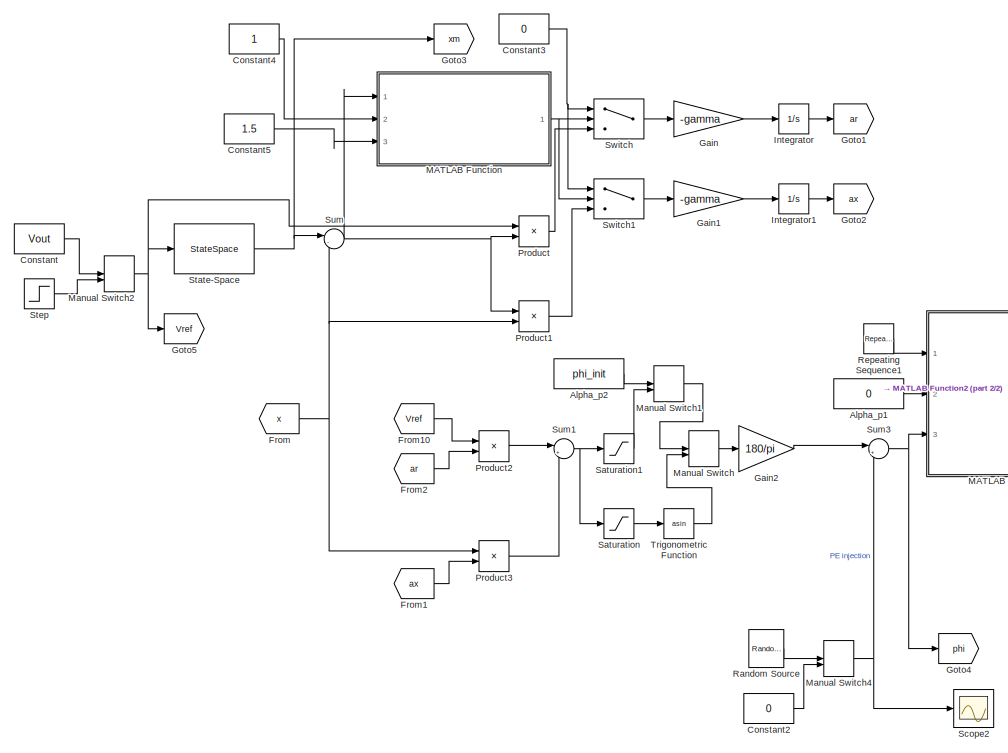
[diagram: root canvas - part 1/2, left side, full height]
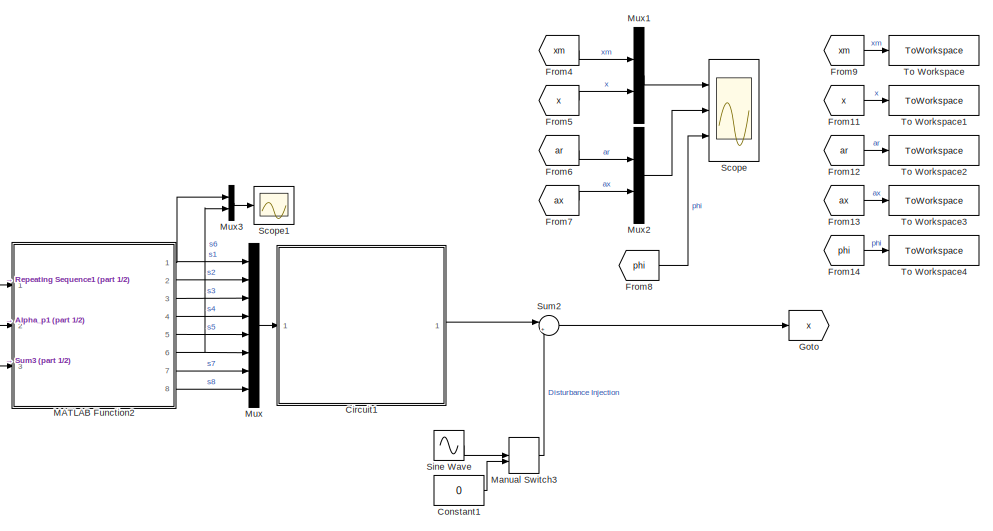
[diagram: root canvas - part 2/2, middle right region]
MODEL slx_f93a5497a171
KIND model
CONFIG AbsTol = auto
CONFIG EnableMultiTasking = off
CONFIG FixedStep = auto
CONFIG MaxStep = min_step_size
CONFIG MinStep = auto
CONFIG RelTol = 1e-3
CONFIG SampleTimeConstraint = Unconstrained
CONFIG SolverName = VariableStepAuto
CONFIG StartTime = 0.0
CONFIG StopTime = TSIM
BLOCK [Constant] Alpha_p1
  Value = 0
BLOCK [Constant] Alpha_p2
  Value = phi_init
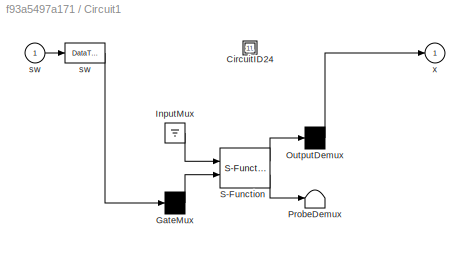
BLOCK [SubSystem] Circuit1
  CopyFcn = plecs('sl', 203);
  DeleteFcn = plecs('sl', 205);
  DestroyFcn = plecs('sl', 207);
  ErrorFcn = plerrorfcn
  InitFcn = plecs('sl', 214);
  LoadFcn = plecs('sl', 200);
  NameChangeFcn = plecs('sl', 210);
  OpenFcn = plecs('sl', 202);
  Ports = [1, 1]
  PostSaveFcn = plecs('sl', 201);
  PreCopyFcn = plecs('sl', 216);
  PreSaveFcn = plecs('sl', 211);
  RequestExecContextInheritance = off
  StartFcn = plecs('sl', 208);
  StopFcn = plecs('sl', 209);
  UndoDeleteFcn = plecs('sl', 206);
BLOCK [SubSystem] Circuit1/ CircuitID24 
  Ports = []
  RequestExecContextInheritance = off
BLOCK [Mux] Circuit1/ GateMux 
  Inputs = [ 8 ]
  Ports = [1, 1]
BLOCK [Ground] Circuit1/ InputMux 
BLOCK [Demux] Circuit1/ OutputDemux 
  Outputs = [ 1 ]
  Ports = [1, 1]
BLOCK [Terminator] Circuit1/ ProbeDemux 
BLOCK [S-Function] Circuit1/ S-Function 
  EnableBusSupport = off
  FunctionName = plecs
  Ports = [2, 2]
  SFcnIsStateOwnerBlock = off
  SFunctionDeploymentMode = off
BLOCK [DataTypeConversion] Circuit1/ sw 
BLOCK [Inport] Circuit1/sw
  PortDimensions = 8
BLOCK [Outport] Circuit1/x
  PortDimensions = 1
BLOCK [Constant] Constant
  Value = Vout
BLOCK [Constant] Constant1
  Value = 0
BLOCK [Constant] Constant2
  Value = 0
BLOCK [Constant] Constant3
  Value = 0
BLOCK [Constant] Constant4
BLOCK [Constant] Constant5
  Value = 1.5
BLOCK [From] From
  GotoTag = x
BLOCK [From] From1
  GotoTag = ax
BLOCK [From] From10
  GotoTag = Vref
BLOCK [From] From11
  GotoTag = x
BLOCK [From] From12
  GotoTag = ar
BLOCK [From] From13
  GotoTag = ax
BLOCK [From] From14
  GotoTag = phi
BLOCK [From] From2
  GotoTag = ar
BLOCK [From] From4
  GotoTag = xm
BLOCK [From] From5
  GotoTag = x
BLOCK [From] From6
  GotoTag = ar
BLOCK [From] From7
  GotoTag = ax
BLOCK [From] From8
  GotoTag = phi
BLOCK [From] From9
  GotoTag = xm
BLOCK [Gain] Gain
  Gain = -gamma
BLOCK [Gain] Gain1
  Gain = -gamma
BLOCK [Gain] Gain2
  Gain = 180/pi
BLOCK [Goto] Goto
  GotoTag = x
BLOCK [Goto] Goto1
  GotoTag = ar
BLOCK [Goto] Goto2
  GotoTag = ax
BLOCK [Goto] Goto3
  GotoTag = xm
BLOCK [Goto] Goto4
  GotoTag = phi
BLOCK [Goto] Goto5
  GotoTag = Vref
BLOCK [Integrator] Integrator
  InitialCondition = ar_0
  Ports = [1, 1]
BLOCK [Integrator] Integrator1
  InitialCondition = ax_0
  Ports = [1, 1]
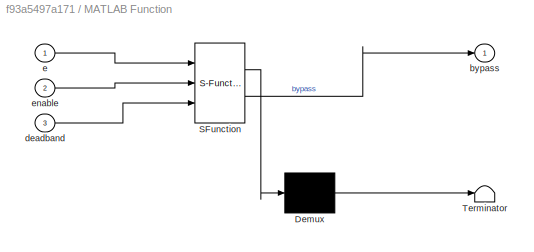
BLOCK [SubSystem] MATLAB Function
  ErrorFcn = Stateflow.Translate.translate
  PermitHierarchicalResolution = ExplicitOnly
  Ports = [3, 1]
  RequestExecContextInheritance = off
  SFBlockType = MATLAB Function
  TreatAsAtomicUnit = on
BLOCK [Demux] MATLAB Function/ Demux 
  Outputs = 1
  Ports = [1, 1]
BLOCK [S-Function] MATLAB Function/ SFunction 
  EnableBusSupport = on
  FunctionName = sf_sfun
  PortCounts = [3 2]
  Ports = [3, 2]
  SFcnIsStateOwnerBlock = off
  SFunctionDeploymentMode = off
  Tag = Stateflow S-Function 1
BLOCK [Terminator] MATLAB Function/ Terminator 
BLOCK [Outport] MATLAB Function/bypass
BLOCK [Inport] MATLAB Function/deadband
  Port = 3
BLOCK [Inport] MATLAB Function/e
BLOCK [Inport] MATLAB Function/enable
  Port = 2
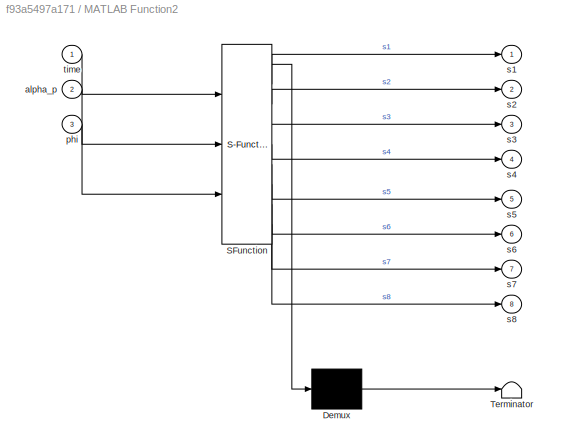
BLOCK [SubSystem] MATLAB Function2
  ErrorFcn = Stateflow.Translate.translate
  PermitHierarchicalResolution = ExplicitOnly
  Ports = [3, 8]
  RequestExecContextInheritance = off
  SFBlockType = MATLAB Function
  TreatAsAtomicUnit = on
BLOCK [Demux] MATLAB Function2/ Demux 
  Outputs = 1
  Ports = [1, 1]
BLOCK [S-Function] MATLAB Function2/ SFunction 
  EnableBusSupport = on
  FunctionName = sf_sfun
  PortCounts = [3 9]
  Ports = [3, 9]
  SFcnIsStateOwnerBlock = off
  SFunctionDeploymentMode = off
  Tag = Stateflow S-Function 2
BLOCK [Terminator] MATLAB Function2/ Terminator 
BLOCK [Inport] MATLAB Function2/alpha_p
  Port = 2
BLOCK [Inport] MATLAB Function2/phi
  Port = 3
BLOCK [Outport] MATLAB Function2/s1
  VectorParamsAs1DForOutWhenUnconnected = off
BLOCK [Outport] MATLAB Function2/s2
  Port = 2
  VectorParamsAs1DForOutWhenUnconnected = off
BLOCK [Outport] MATLAB Function2/s3
  Port = 3
  VectorParamsAs1DForOutWhenUnconnected = off
BLOCK [Outport] MATLAB Function2/s4
  Port = 4
  VectorParamsAs1DForOutWhenUnconnected = off
BLOCK [Outport] MATLAB Function2/s5
  Port = 5
  VectorParamsAs1DForOutWhenUnconnected = off
BLOCK [Outport] MATLAB Function2/s6
  Port = 6
  VectorParamsAs1DForOutWhenUnconnected = off
BLOCK [Outport] MATLAB Function2/s7
  Port = 7
  VectorParamsAs1DForOutWhenUnconnected = off
BLOCK [Outport] MATLAB Function2/s8
  Port = 8
  VectorParamsAs1DForOutWhenUnconnected = off
BLOCK [Inport] MATLAB Function2/time
BLOCK [ManualSwitch] Manual Switch
  CurrentSetting = 0
BLOCK [ManualSwitch] Manual Switch1
  CurrentSetting = 0
BLOCK [ManualSwitch] Manual Switch2
  CurrentSetting = 0
BLOCK [ManualSwitch] Manual Switch3
  CurrentSetting = 0
BLOCK [ManualSwitch] Manual Switch4
  CurrentSetting = 0
BLOCK [Mux] Mux
  DisplayOption = bar
  Inputs = 8
  Ports = [8, 1]
BLOCK [Mux] Mux1
  DisplayOption = bar
  Inputs = 2
  Ports = [2, 1]
BLOCK [Mux] Mux2
  DisplayOption = bar
  Inputs = 2
  Ports = [2, 1]
BLOCK [Mux] Mux3
  DisplayOption = bar
  Inputs = 2
  Ports = [2, 1]
BLOCK [Product] Product
  Ports = [2, 1]
BLOCK [Product] Product1
  Ports = [2, 1]
BLOCK [Product] Product2
  Ports = [2, 1]
BLOCK [Product] Product3
  Ports = [2, 1]
BLOCK [Reference] Random Source  REF=dspsrcs4/Random
Source
  Ports = [0, 1]
  SourceBlock = dspsrcs4/Random\nSource
  SourceProductBaseCode = DS
  SourceType = Random Source
  UserDataPersistent = on
BLOCK [Reference] Repeating Sequence1  REF=simulink/Sources/Repeating
Sequence
  Ports = [0, 1]
  SourceBlock = simulink/Sources/Repeating\nSequence
  SourceProductBaseCode = SL
  SourceType = Repeating table
BLOCK [Saturate] Saturation
  LowerLimit = -1
  UpperLimit = 1
BLOCK [Saturate] Saturation1
  LowerLimit = -pi/2
  UpperLimit = pi/2
BLOCK [Scope] Scope
  Floating = off
  NumInputPorts = 3
  Ports = [3]
  ScopeSpecificationString = Simulink.scopes.TimeScopeBlockCfg('CurrentConfiguration', extmgr.ConfigurationSet(extmgr.Configuration('Core','General UI',true),extmgr.Configuration('Core','Source UI',true),extmgr.Configuration('Sources','WiredSimulink',true),extmgr.Configuration('Visuals','Time Domain',true,'SerializedDisplays',{struct('MinYLimReal','-3.69273','MaxYLimReal','33.22459','YLabelReal','','MinYLimMag','0.00000','Max...<+2704ch>
BLOCK [Scope] Scope1
  Floating = off
  NumInputPorts = 1
  Ports = [1]
  ScopeSpecificationString = Simulink.scopes.TimeScopeBlockCfg('CurrentConfiguration', extmgr.ConfigurationSet(extmgr.Configuration('Core','General UI',true),extmgr.Configuration('Core','Source UI',true),extmgr.Configuration('Sources','WiredSimulink',true,'DataLoggingVariableName','ScopeData1'),extmgr.Configuration('Visuals','Time Domain',true,'SerializedDisplays',{struct('MinYLimReal','-0.125','MaxYLimReal','1.125','YLabelRe...<+1507ch>
BLOCK [Scope] Scope2
  Floating = off
  NumInputPorts = 1
  Ports = [1]
  ScopeSpecificationString = Simulink.scopes.TimeScopeBlockCfg('CurrentConfiguration', extmgr.ConfigurationSet(extmgr.Configuration('Core','General UI',true),extmgr.Configuration('Core','Source UI',true),extmgr.Configuration('Sources','WiredSimulink',true,'DataLoggingVariableName','ScopeData2'),extmgr.Configuration('Visuals','Time Domain',true,'SerializedDisplays',{struct('MinYLimReal','-1.00000','MaxYLimReal','1.00000','YLab...<+1522ch>
BLOCK [Sin] Sine Wave
  Amplitude = 2.5
  Frequency = 100e+3
  Ports = [0, 1]
  SampleTime = 0
BLOCK [StateSpace] State-Space
  A = -am
  B = bm
  D = 0
  InitialCondition = 0
  Ports = [1, 1]
BLOCK [Step] Step
  After = Vout2
  Before = Vout1
  SampleTime = 0
  Time = voltage_step_time
BLOCK [Sum] Sum
  Inputs = |-+
  Ports = [2, 1]
BLOCK [Sum] Sum1
  Inputs = |++
  Ports = [2, 1]
BLOCK [Sum] Sum2
  Inputs = |++
  Ports = [2, 1]
BLOCK [Sum] Sum3
  Inputs = |++
  Ports = [2, 1]
BLOCK [Switch] Switch
  Criteria = u2 > Threshold
  InputSameDT = off
  SaturateOnIntegerOverflow = off
  Threshold = 0.5
BLOCK [Switch] Switch1
  Criteria = u2 > Threshold
  InputSameDT = off
  SaturateOnIntegerOverflow = off
  Threshold = 0.5
BLOCK [ToWorkspace] To Workspace
  FixptAsFi = on
  MaxDataPoints = inf
  Ports = [1]
  SampleTime = -1
  SaveFormat = Structure With Time
  VariableName = xm
BLOCK [ToWorkspace] To Workspace1
  FixptAsFi = on
  MaxDataPoints = inf
  Ports = [1]
  SampleTime = -1
  SaveFormat = Structure With Time
  VariableName = x
BLOCK [ToWorkspace] To Workspace2
  FixptAsFi = on
  MaxDataPoints = inf
  Ports = [1]
  SampleTime = -1
  SaveFormat = Structure With Time
  VariableName = ar
BLOCK [ToWorkspace] To Workspace3
  FixptAsFi = on
  MaxDataPoints = inf
  Ports = [1]
  SampleTime = -1
  SaveFormat = Structure With Time
  VariableName = ax
BLOCK [ToWorkspace] To Workspace4
  FixptAsFi = on
  MaxDataPoints = inf
  Ports = [1]
  SampleTime = -1
  SaveFormat = Structure With Time
  VariableName = u
BLOCK [Trigonometry] Trigonometric Function
  Operator = asin
  Ports = [1, 1]
LINE Alpha_p1:1 -> MATLAB Function2:2
LINE Alpha_p2:1 -> Manual Switch1:1
LINE Circuit1:1 -> Sum2:1
LINE Constant1:1 -> Manual Switch3:2
LINE Constant2:1 -> Manual Switch4:2
NET Constant3:1 -> Switch1:1, Switch:1
LINE Constant4:1 -> MATLAB Function:2
LINE Constant5:1 -> MATLAB Function:3
LINE Constant:1 -> Manual Switch2:1
LINE From10:1 -> Product2:1
LINE From11:1 -> To Workspace1:1
LINE From12:1 -> To Workspace2:1
LINE From13:1 -> To Workspace3:1
LINE From14:1 -> To Workspace4:1
LINE From1:1 -> Product3:2
LINE From2:1 -> Product2:2
LINE From4:1 -> Mux1:1
LINE From5:1 -> Mux1:2
LINE From6:1 -> Mux2:1
LINE From7:1 -> Mux2:2
LINE From8:1 -> Scope:3
LINE From9:1 -> To Workspace:1
NET From:1 -> Product1:2, Product3:1, Sum:2
LINE Gain1:1 -> Integrator1:1
LINE Gain2:1 -> Sum3:1
LINE Gain:1 -> Integrator:1
LINE Integrator1:1 -> Goto2:1
LINE Integrator:1 -> Goto1:1
NET MATLAB Function2:1 -> Mux3:1, Mux:1
LINE MATLAB Function2:2 -> Mux:2
LINE MATLAB Function2:3 -> Mux:3
LINE MATLAB Function2:4 -> Mux:4
LINE MATLAB Function2:5 -> Mux:5
NET MATLAB Function2:6 -> Mux3:2, Mux:6
LINE MATLAB Function2:7 -> Mux:7
LINE MATLAB Function2:8 -> Mux:8
NET MATLAB Function:1 -> Switch1:2, Switch:2
LINE Manual Switch1:1 -> Manual Switch:1
NET Manual Switch2:1 -> Goto5:1, Product:1, State-Space:1
LINE Manual Switch3:1 -> Sum2:2
NET Manual Switch4:1 -> Scope2:1, Sum3:2
LINE Manual Switch:1 -> Gain2:1
LINE Mux1:1 -> Scope:1
LINE Mux2:1 -> Scope:2
LINE Mux3:1 -> Scope1:1
LINE Mux:1 -> Circuit1:1
LINE Product1:1 -> Switch1:3
LINE Product2:1 -> Sum1:1
LINE Product3:1 -> Sum1:2
LINE Product:1 -> Switch:3
LINE Random Source:1 -> Manual Switch4:1
LINE Repeating Sequence1:1 -> MATLAB Function2:1
LINE Saturation1:1 -> Manual Switch1:2
LINE Saturation:1 -> Trigonometric Function:1
LINE Sine Wave:1 -> Manual Switch3:1
NET State-Space:1 -> Goto3:1, Sum:1
LINE Step:1 -> Manual Switch2:2
NET Sum1:1 -> Saturation1:1, Saturation:1
LINE Sum2:1 -> Goto:1
NET Sum3:1 -> Goto4:1, MATLAB Function2:3
NET Sum:1 -> MATLAB Function:1, Product1:1, Product:2
LINE Switch1:1 -> Gain1:1
LINE Switch:1 -> Gain:1
LINE Trigonometric Function:1 -> Manual Switch:2
note: NET lines group one-source signal fan-out (src -> all destinations, sorted); 1:1 wires keep LINE
CHART MATLAB Function states=1 transitions=1
  STATE_LABEL 'eML_blk_kernel()'
  STATE_LABEL 'SCRIPT:\nfunction bypass = deadzone_modification(e,enable,deadband)\nif enable == 1\n if abs(e) <= deadband\n    bypass = 1;\n else\n     bypass = 0;\n end\nelse \n    bypass = 0;\nend\nend\n'
CHART MATLAB Function2 states=1 transitions=1
  STATE_LABEL 'eML_blk_kernel()'
  STATE_LABEL 'SCRIPT:\nfunction [s1, s2, s3, s4, s5, s6, s7, s8]  = primary_PWM(time, alpha_p, phi)\n%T = 1/fsw;\nmax_val = 1;\n\nalpha_pr = alpha_p * pi/180; %converting to radians\nphi_r = abs(phi) * pi/180;\n\np1 = max_val*(pi-alpha_pr)/(2*pi);\np2 = max_val*(alpha_pr)/(2*pi);\n\np3 = max_val*(phi_r)/(2*pi);\np4 = max_val*(pi)/(2*pi);\np5 = max_val*(pi - phi_r)/(2*pi);\n\n%primary side switching\nif time <= p1\n    s1 = 1;\n ...<+1187ch>'
CHART  states=0 transitions=0
CHART  states=0 transitions=0
